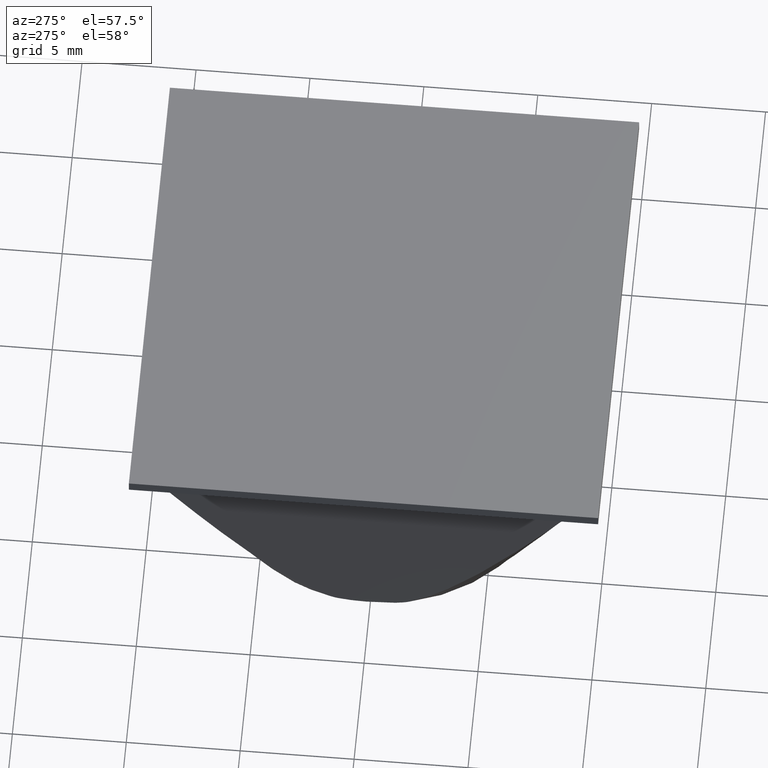
[diagram: clean part render]
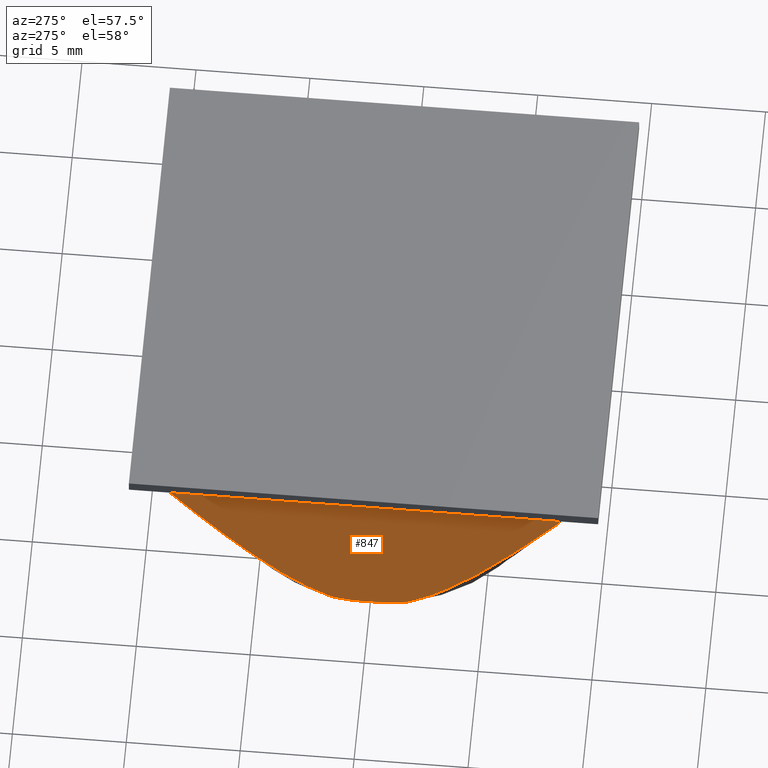
[diagram: same view with one face highlighted and labeled with its STEP entity id]
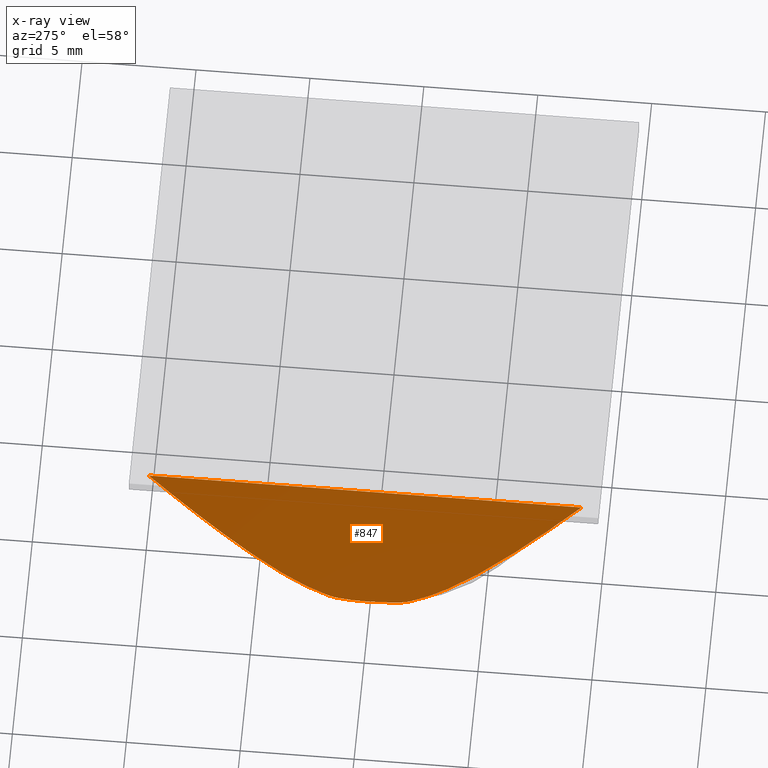
[diagram: x-ray of the same camera — body ghosted, the highlighted face saturated]
A machine part, auxiliary view. The second image highlights one B-rep face of the part: STEP entity #847.
The next image is the same camera in x-ray: the body ghosted, the highlighted face saturated — about 0% of this face is hidden behind the body in this view.
In plain terms, the highlighted face is a freeform B-spline surface patch.
Its self-contained STEP definition (entity closure, byte-faithful):
#209=CARTESIAN_POINT('',(-7.379723671231931,-1.769771452936490,0.675315743465284));
#210=VERTEX_POINT('',#209);
#224=CARTESIAN_POINT('',(-7.379723671228320,1.769771452951565,0.675315743465285));
#225=VERTEX_POINT('',#224);
#226=CARTESIAN_POINT('',(-7.379723671231925,-1.769771452936491,0.675315743465284));
#227=CARTESIAN_POINT('',(-7.375629430709466,-1.738436735764247,0.652096152280453));
#228=CARTESIAN_POINT('',(-7.371991308677011,-1.705979005489990,0.631463337522549));
#229=CARTESIAN_POINT('',(-7.365332075128289,-1.639544398252716,0.593696948430986));
#230=CARTESIAN_POINT('',(-7.362314963490734,-1.605557673155290,0.576586058536085));
#231=CARTESIAN_POINT('',(-7.353962767605283,-1.501876141888843,0.529218403193910));
#232=CARTESIAN_POINT('',(-7.349315759435333,-1.430487217924446,0.502863910987839));
#233=CARTESIAN_POINT('',(-7.341218656835538,-1.284762438788967,0.456942961518079));
#234=CARTESIAN_POINT('',(-7.337767935953681,-1.210091445864384,0.437372951468558));
#235=CARTESIAN_POINT('',(-7.331827493168500,-1.060288057306842,0.403683027251311));
#236=CARTESIAN_POINT('',(-7.329335543574207,-0.985180736689435,0.389550479220651));
#237=CARTESIAN_POINT('',(-7.322934124792560,-0.759396838532250,0.353246230289158));
#238=CARTESIAN_POINT('',(-7.320078166466582,-0.608267318582091,0.337049286214593));
#239=CARTESIAN_POINT('',(-7.316320540333839,-0.305168058527614,0.315738730044494));
#240=CARTESIAN_POINT('',(-7.315432653400795,-0.153192393527416,0.310703273165354));
#241=CARTESIAN_POINT('',(-7.315427685793518,0.075341570261760,0.310675100465314));
#242=CARTESIAN_POINT('',(-7.315650985814358,0.151616274862143,0.311941497778078));
#243=CARTESIAN_POINT('',(-7.316565811595473,0.304366991237613,0.317129732452191));
#244=CARTESIAN_POINT('',(-7.317258697513540,0.380945851801687,0.321059283651513));
#245=CARTESIAN_POINT('',(-7.320101967547485,0.609978492193509,0.337184268848195));
#246=CARTESIAN_POINT('',(-7.322986626539813,0.761859978046038,0.353543982485452));
#247=CARTESIAN_POINT('',(-7.329423273123006,0.987961156143327,0.390048018201768));
#248=CARTESIAN_POINT('',(-7.331925569069772,1.063037182655705,0.404239243311444));
#249=CARTESIAN_POINT('',(-7.337871640038632,1.212421180795983,0.437961086543559));
#250=CARTESIAN_POINT('',(-7.341318171493768,1.286747027877217,0.457507337174156));
#251=CARTESIAN_POINT('',(-7.349405142567685,1.431897671743632,0.503370827907031));
#252=CARTESIAN_POINT('',(-7.354044144252999,1.502998937716817,0.529679913083611));
#253=CARTESIAN_POINT('',(-7.362375557493351,1.606252528799057,0.576929704191801));
#254=CARTESIAN_POINT('',(-7.365384253671792,1.640097225691166,0.593992867647761));
#255=CARTESIAN_POINT('',(-7.372021885527006,1.706251366851778,0.631636747451130));
#256=CARTESIAN_POINT('',(-7.375646908144048,1.738570496951702,0.652195271734637));
#257=CARTESIAN_POINT('',(-7.379723671228320,1.769771452951565,0.675315743465285));
#258=B_SPLINE_CURVE_WITH_KNOTS('',3,(#226,#227,#228,#229,#230,#231,#232,#233,#234,#235,#236,#237,#238,#239,#240,#241,#242,#243,#244,#245,#246,#247,#248,#249,#250,#251,#252,#253,#254,#255,#256,#257),.UNSPECIFIED.,.F.,.U.,(4,2,2,2,2,2,2,2,2,2,2,2,2,2,2,4),(0.0,0.031250000000000,0.062500000000000,0.125000000000000,0.187500000000000,0.250000000000000,0.375000000000000,0.500000000000000,0.562500000000000,0.625000000000000,0.750000000000000,0.812500000000000,0.875000000000000,0.937500000000000,0.968750000000000,1.0),.UNSPECIFIED.);
#259=EDGE_CURVE('',#210,#225,#258,.T.);
#461=CARTESIAN_POINT('',(-9.499999999999790,-9.499999999999721,12.699999999998839));
#462=VERTEX_POINT('',#461);
#463=CARTESIAN_POINT('',(-9.499999999999730,9.500000000000000,12.699999999999999));
#464=VERTEX_POINT('',#463);
#465=CARTESIAN_POINT('',(-9.499999999999790,-9.499999999999721,12.699999999998839));
#466=CARTESIAN_POINT('',(-9.499999999999730,9.500000000000000,12.699999999999999));
#467=QUASI_UNIFORM_CURVE('',1,(#465,#466),.UNSPECIFIED.,.F.,.U.);
#468=EDGE_CURVE('',#462,#464,#467,.T.);
#784=CARTESIAN_POINT('',(-7.206310039720180,-10.449049963174019,-0.308161804444419));
#785=CARTESIAN_POINT('',(-9.609119195143656,-10.449049963174019,13.318845690123879));
#786=CARTESIAN_POINT('',(-7.206310039720180,10.449050472794010,-0.308161804444419));
#787=CARTESIAN_POINT('',(-9.609119195143656,10.449050472794010,13.318845690123879));
#788=B_SPLINE_SURFACE_WITH_KNOTS('',1,1,((#784,#786),(#785,#787)),.UNSPECIFIED.,.F.,.F.,.U.,(2,2),(2,2),(0.0,13.837226062127030),(0.0,20.898100435968029),.UNSPECIFIED.);
#789=ORIENTED_EDGE('',*,*,#468,.T.);
#790=CARTESIAN_POINT('',(-7.379723671228320,1.769771452951565,0.675315743465285));
#791=CARTESIAN_POINT('',(-7.395762308301753,1.892520996753619,0.766275371723677));
#792=CARTESIAN_POINT('',(-7.412617569365320,2.010301331829203,0.861866304660531));
#793=CARTESIAN_POINT('',(-7.447544818038457,2.238458143880110,1.059948569479283));
#794=CARTESIAN_POINT('',(-7.465619413478702,2.348818752040603,1.162454691103451));
#795=CARTESIAN_POINT('',(-7.521261962972369,2.671267312749898,1.478019261537864));
#796=CARTESIAN_POINT('',(-7.560227003233480,2.874853907233063,1.699000979734579));
#797=CARTESIAN_POINT('',(-7.640572816093177,3.267327211912593,2.154664714627964));
#798=CARTESIAN_POINT('',(-7.681992271785611,3.456225876795455,2.389566114045295));
#799=CARTESIAN_POINT('',(-7.766434739366130,3.823232583458735,2.868463131722408));
#800=CARTESIAN_POINT('',(-7.809275703912388,4.000515711744148,3.111426308231327));
#801=CARTESIAN_POINT('',(-7.895840892961201,4.346216706022789,3.602361877239913));
#802=CARTESIAN_POINT('',(-7.939567803704053,4.514607610276537,3.850349504164925));
#803=CARTESIAN_POINT('',(-8.027685209614834,4.844729035349412,4.350088132194479));
#804=CARTESIAN_POINT('',(-8.072077003397636,5.006446521997393,4.601846498109717));
#805=CARTESIAN_POINT('',(-8.206024657674345,5.483847694201269,5.361501373149863));
#806=CARTESIAN_POINT('',(-8.296340786330003,5.791900583615741,5.873709577156876));
#807=CARTESIAN_POINT('',(-8.478275395911220,6.394934679089002,6.905511991713428));
#808=CARTESIAN_POINT('',(-8.569901927782476,6.689835077968811,7.425151861443687));
#809=CARTESIAN_POINT('',(-8.754061150005137,7.270540781416100,8.469570680873311));
#810=CARTESIAN_POINT('',(-8.846597199239650,7.556312372941841,8.994368679744854));
#811=CARTESIAN_POINT('',(-9.125194679728105,8.403697234394349,10.574373461237760));
#812=CARTESIAN_POINT('',(-9.312225006589781,8.955585718729873,11.635075123749299));
#813=CARTESIAN_POINT('',(-9.499999999999730,9.500000000000000,12.699999999999999));
#814=B_SPLINE_CURVE_WITH_KNOTS('',3,(#790,#791,#792,#793,#794,#795,#796,#797,#798,#799,#800,#801,#802,#803,#804,#805,#806,#807,#808,#809,#810,#811,#812,#813),.UNSPECIFIED.,.F.,.U.,(4,2,2,2,2,2,2,2,2,2,2,4),(0.0,0.031250000000000,0.062500000000000,0.125000000000000,0.187500000000000,0.250000000000000,0.312500000000000,0.375000000000000,0.500000000000000,0.625000000000000,0.750000000000000,1.0),.UNSPECIFIED.);
#815=EDGE_CURVE('',#225,#464,#814,.T.);
#816=ORIENTED_EDGE('',*,*,#815,.F.);
#817=ORIENTED_EDGE('',*,*,#259,.F.);
#818=CARTESIAN_POINT('',(-9.499999999999790,-9.499999999999721,12.699999999998839));
#819=CARTESIAN_POINT('',(-9.312114196699991,-8.955264448292923,11.634446689653631));
#820=CARTESIAN_POINT('',(-9.124959800327629,-8.403006716574810,10.573041394001629));
#821=CARTESIAN_POINT('',(-8.846143634738436,-7.554920823070946,8.991796387707694));
#822=CARTESIAN_POINT('',(-8.753529186975312,-7.268890516964956,8.466553768698683));
#823=CARTESIAN_POINT('',(-8.569198695099946,-6.687590241124696,7.421163630828874));
#824=CARTESIAN_POINT('',(-8.477479309869500,-6.392354633237050,6.900997163545612));
#825=CARTESIAN_POINT('',(-8.295339622909996,-5.788522947960214,5.868031697414761));
#826=CARTESIAN_POINT('',(-8.204911278115072,-5.480009589761936,5.355187084075248));
#827=CARTESIAN_POINT('',(-8.070775643783696,-5.001741963213904,4.594466121198673));
#828=CARTESIAN_POINT('',(-8.026317895449049,-4.839705814503540,4.342333708443221));
#829=CARTESIAN_POINT('',(-7.938061007482355,-4.508860032949595,3.841804038388133));
#830=CARTESIAN_POINT('',(-7.894223727528741,-4.339915552355043,3.593190476582349));
#831=CARTESIAN_POINT('',(-7.807599654647260,-3.993659220290193,3.101920960773485));
#832=CARTESIAN_POINT('',(-7.764878525820573,-3.816643165532872,2.859637406383149));
#833=CARTESIAN_POINT('',(-7.681053884499833,-3.451967916293467,2.384244255441911));
#834=CARTESIAN_POINT('',(-7.639944367412788,-3.264348229153697,2.151100605152915));
#835=CARTESIAN_POINT('',(-7.560042688044898,-2.873861771559823,1.697955676385996));
#836=CARTESIAN_POINT('',(-7.521235430436899,-2.671094321119250,1.477868788056069));
#837=CARTESIAN_POINT('',(-7.465703602393344,-2.349316226163036,1.162932150150987));
#838=CARTESIAN_POINT('',(-7.447644835165661,-2.239083956712290,1.060515794778419));
#839=CARTESIAN_POINT('',(-7.412702778694735,-2.010885336385273,0.862349550767665));
#840=CARTESIAN_POINT('',(-7.395816704390366,-1.892937309875606,0.766583867263395));
#841=CARTESIAN_POINT('',(-7.379723671231924,-1.769771452936502,0.675315743465273));
#842=B_SPLINE_CURVE_WITH_KNOTS('',3,(#818,#819,#820,#821,#822,#823,#824,#825,#826,#827,#828,#829,#830,#831,#832,#833,#834,#835,#836,#837,#838,#839,#840,#841),.UNSPECIFIED.,.F.,.U.,(4,2,2,2,2,2,2,2,2,2,2,4),(0.0,0.250000000000000,0.375000000000000,0.500000000000000,0.625000000000000,0.687500000000000,0.750000000000000,0.812500000000000,0.875000000000000,0.937500000000000,0.968750000000000,1.0),.UNSPECIFIED.);
#843=EDGE_CURVE('',#462,#210,#842,.T.);
#844=ORIENTED_EDGE('',*,*,#843,.F.);
#845=EDGE_LOOP('',(#789,#816,#817,#844));
#846=FACE_OUTER_BOUND('',#845,.T.);
#847=ADVANCED_FACE('',(#846),#788,.T.);